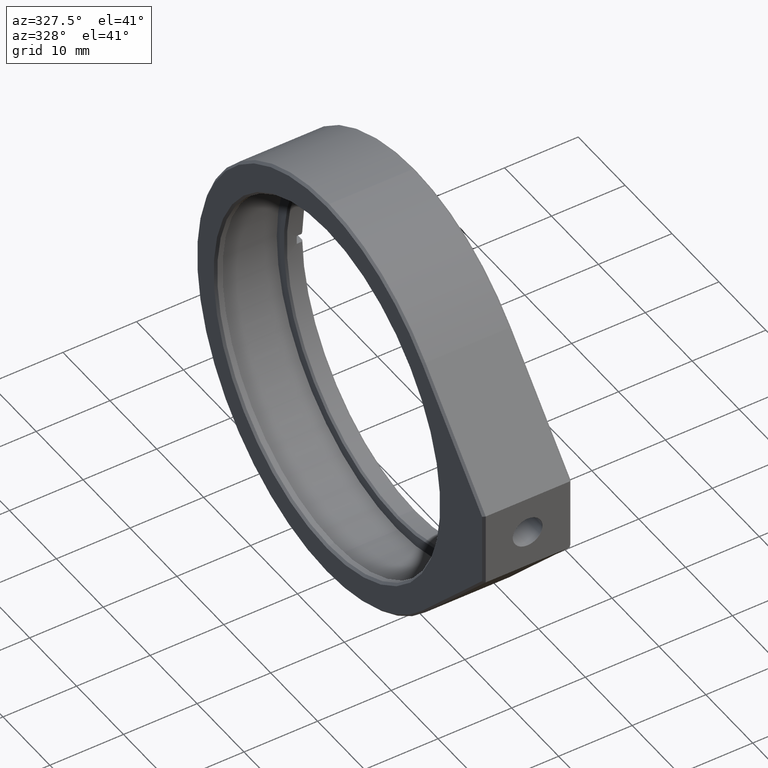
[diagram: clean part render]
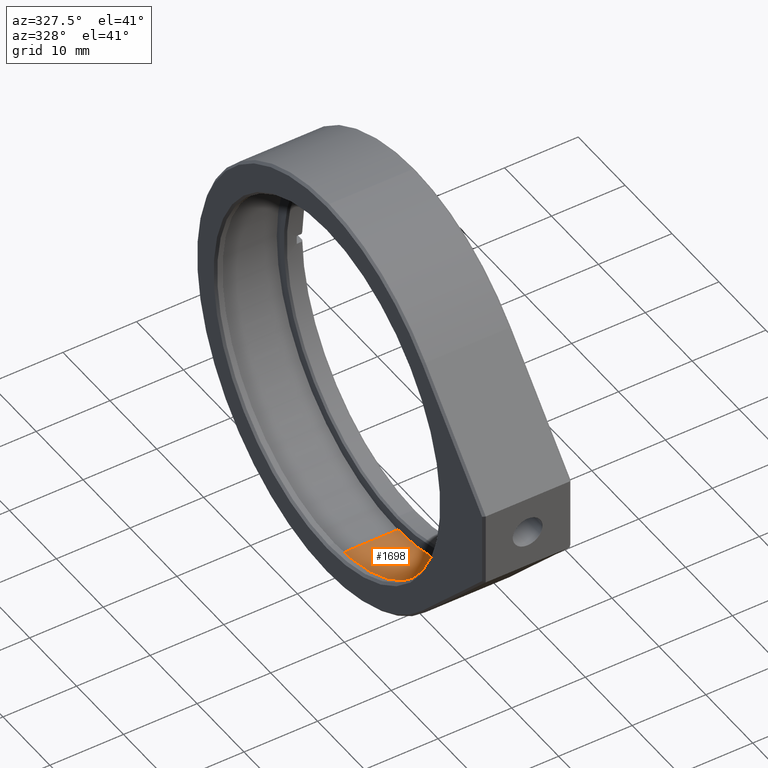
[diagram: same view with one face highlighted and labeled with its STEP entity id]
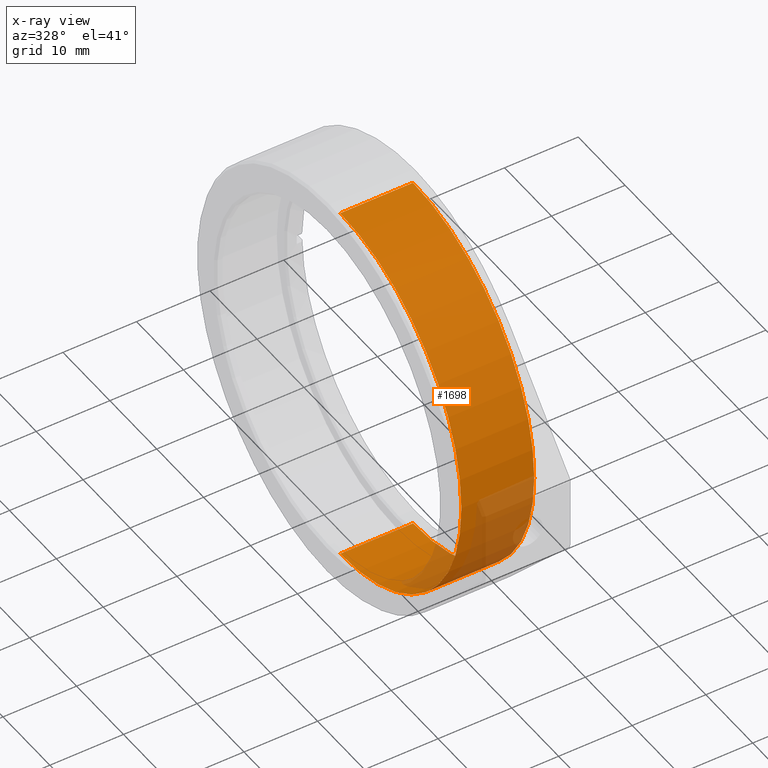
[diagram: x-ray of the same camera — body ghosted, the highlighted face saturated]
A machine part, auxiliary view. The second image highlights one B-rep face of the part: STEP entity #1698.
The next image is the same camera in x-ray: the body ghosted, the highlighted face saturated — about 15% of this face is hidden behind the body in this view.
In plain terms, the highlighted cylindrical surface (partial cylindrical patch) has radius 25.85 mm, axis along (1, -0, -0).
Its self-contained STEP definition (entity closure, byte-faithful):
#22 = CARTESIAN_POINT ( 'NONE',  ( -79.11484117468901900, 3.165711975795908155E-15, 25.85000000000000497 ) ) ;
#24 = CARTESIAN_POINT ( 'NONE',  ( 5.699999999999927347, 0.0000000000000000000, 0.0000000000000000000 ) ) ;
#31 = DIRECTION ( 'NONE',  ( 1.000000000000000000, 0.0000000000000000000, 0.0000000000000000000 ) ) ;
#41 = VECTOR ( 'NONE', #568, 1000.000000000000000 ) ;
#133 = CARTESIAN_POINT ( 'NONE',  ( 5.699999999999927347, 3.165711975795908155E-15, 25.85000000000000497 ) ) ;
#136 = VERTEX_POINT ( 'NONE', #878 ) ;
#249 = VERTEX_POINT ( 'NONE', #473 ) ;
#279 = DIRECTION ( 'NONE',  ( 0.0000000000000000000, 0.0000000000000000000, -1.000000000000000000 ) ) ;
#341 = VERTEX_POINT ( 'NONE', #133 ) ;
#346 = ORIENTED_EDGE ( 'NONE', *, *, #949, .T. ) ;
#354 = CARTESIAN_POINT ( 'NONE',  ( -4.199999999999995737, 0.0000000000000000000, 0.0000000000000000000 ) ) ;
#368 = CARTESIAN_POINT ( 'NONE',  ( -4.199999999999995737, 0.0000000000000000000, -25.85000000000000497 ) ) ;
#410 = AXIS2_PLACEMENT_3D ( 'NONE', #354, #1050, #486 ) ;
#473 = CARTESIAN_POINT ( 'NONE',  ( -4.199999999999995737, 3.165711975795908155E-15, 25.85000000000000497 ) ) ;
#486 = DIRECTION ( 'NONE',  ( 0.0000000000000000000, 0.0000000000000000000, -1.000000000000000000 ) ) ;
#501 = EDGE_CURVE ( 'NONE', #341, #136, #1397, .T. ) ;
#556 = ORIENTED_EDGE ( 'NONE', *, *, #735, .F. ) ;
#568 = DIRECTION ( 'NONE',  ( 1.000000000000000000, -0.0000000000000000000, -0.0000000000000000000 ) ) ;
#576 = DIRECTION ( 'NONE',  ( 0.0000000000000000000, 0.0000000000000000000, -1.000000000000000000 ) ) ;
#598 = LINE ( 'NONE', #22, #41 ) ;
#611 = VECTOR ( 'NONE', #1041, 1000.000000000000000 ) ;
#681 = FACE_OUTER_BOUND ( 'NONE', #1494, .T. ) ;
#689 = AXIS2_PLACEMENT_3D ( 'NONE', #1223, #1110, #279 ) ;
#724 = VERTEX_POINT ( 'NONE', #368 ) ;
#735 = EDGE_CURVE ( 'NONE', #724, #136, #1712, .T. ) ;
#878 = CARTESIAN_POINT ( 'NONE',  ( 5.699999999999927347, 0.0000000000000000000, -25.85000000000000497 ) ) ;
#949 = EDGE_CURVE ( 'NONE', #249, #341, #598, .T. ) ;
#950 = AXIS2_PLACEMENT_3D ( 'NONE', #24, #31, #576 ) ;
#1041 = DIRECTION ( 'NONE',  ( 1.000000000000000000, -0.0000000000000000000, -0.0000000000000000000 ) ) ;
#1050 = DIRECTION ( 'NONE',  ( -1.000000000000000000, -0.0000000000000000000, -0.0000000000000000000 ) ) ;
#1110 = DIRECTION ( 'NONE',  ( 1.000000000000000000, -0.0000000000000000000, -0.0000000000000000000 ) ) ;
#1219 = ORIENTED_EDGE ( 'NONE', *, *, #501, .T. ) ;
#1223 = CARTESIAN_POINT ( 'NONE',  ( -79.11484117468901900, 0.0000000000000000000, 0.0000000000000000000 ) ) ;
#1289 = EDGE_CURVE ( 'NONE', #724, #249, #1375, .T. ) ;
#1361 = CYLINDRICAL_SURFACE ( 'NONE', #689, 25.85000000000000497 ) ;
#1366 = ORIENTED_EDGE ( 'NONE', *, *, #1289, .T. ) ;
#1375 = CIRCLE ( 'NONE', #410, 25.85000000000000497 ) ;
#1397 = CIRCLE ( 'NONE', #950, 25.85000000000000497 ) ;
#1468 = CARTESIAN_POINT ( 'NONE',  ( -79.11484117468901900, 0.0000000000000000000, -25.85000000000000497 ) ) ;
#1494 = EDGE_LOOP ( 'NONE', ( #1366, #346, #1219, #556 ) ) ;
#1698 = ADVANCED_FACE ( 'NONE', ( #681 ), #1361, .F. ) ;
#1712 = LINE ( 'NONE', #1468, #611 ) ;